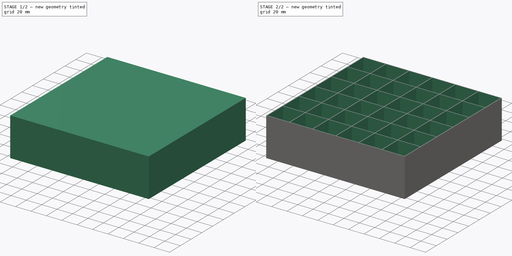
[diagram: build sequence overview — one tinted view per stage of 2, left to right]
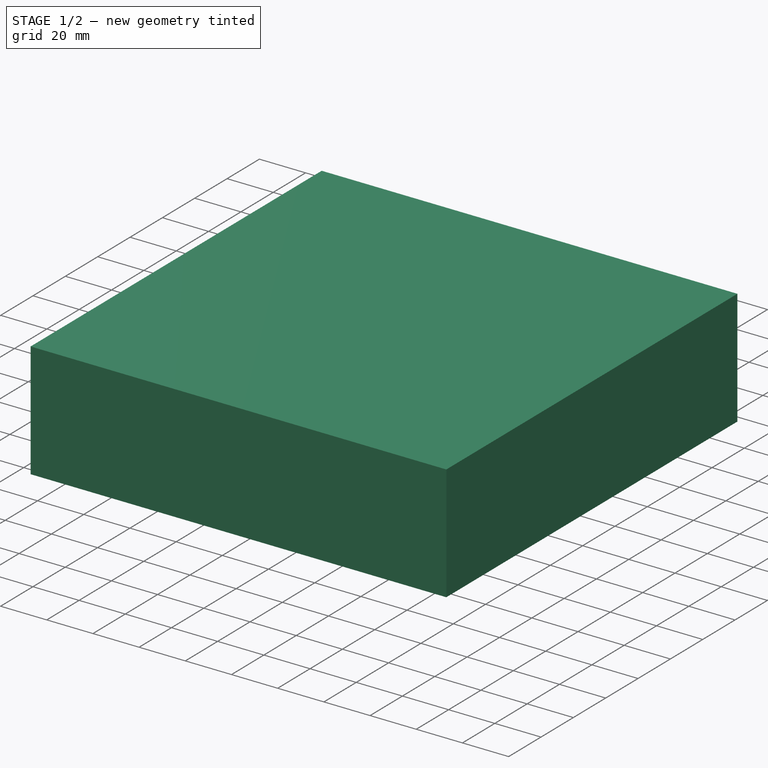
[diagram: stage 1 of 2 — iso view after this stage's code; geometry added in this stage tinted green]
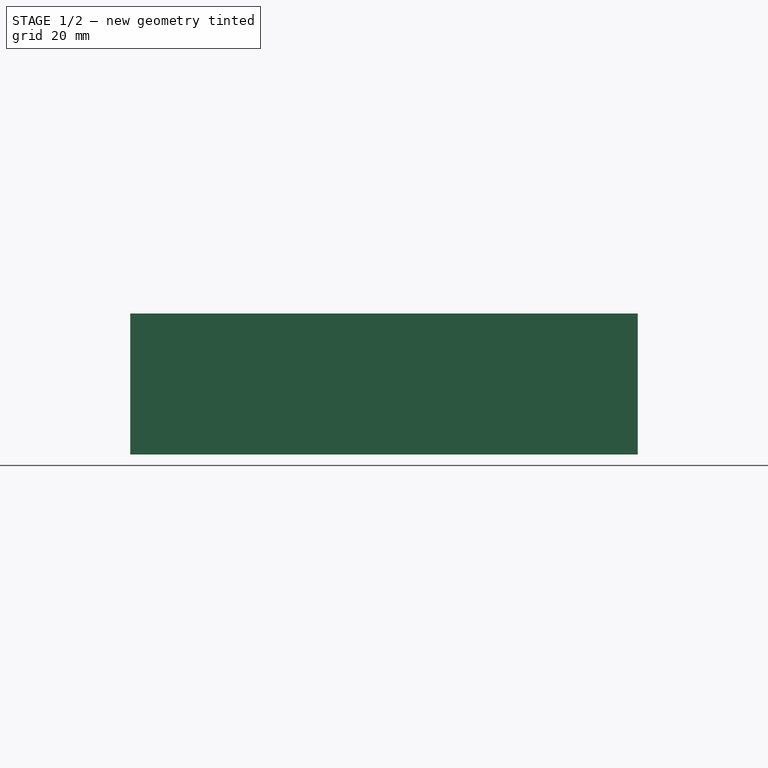
[diagram: stage 1 of 2 — front view after this stage's code; geometry added in this stage tinted green]
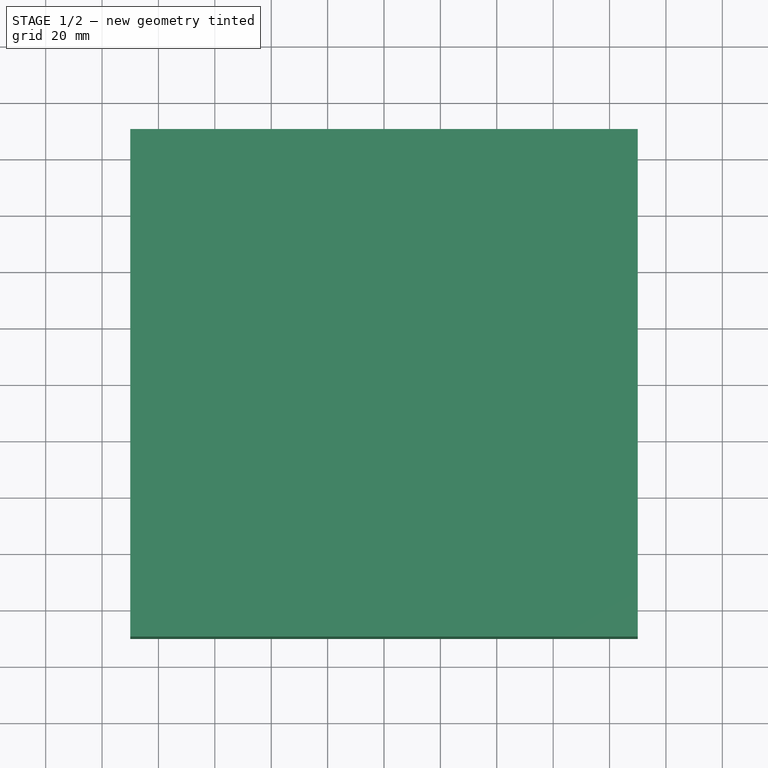
[diagram: stage 1 of 2 — top view after this stage's code; geometry added in this stage tinted green]
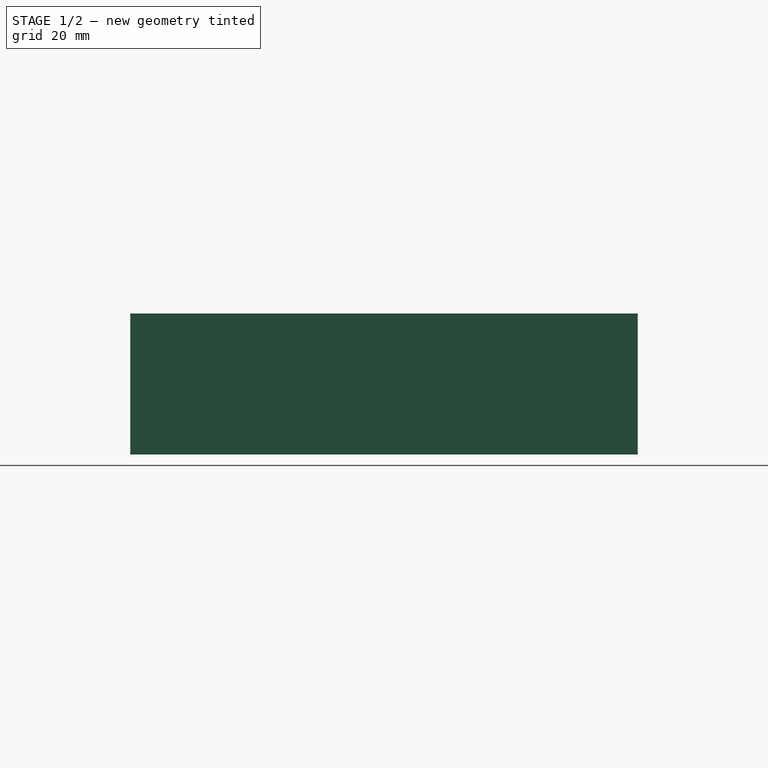
[diagram: stage 1 of 2 — right view after this stage's code; geometry added in this stage tinted green]
FCSTD DOCUMENT  (FreeCAD 1.0R39285 (Git))
Label: GridBox
License: All rights reserved
LicenseURL: https://en.wikipedia.org/wiki/All_rights_reserved
objects: Sketcher::SketchObject×2, PartDesign::Pad×1, PartDesign::Pocket×1, PartDesign::Body×1, App::Part×1
note: 11 computed .brp shape members not serialized (recipe doc carries the construction recipe); baked Part::Feature solids carry a one-line shape summary decoded from their .brp

FEATURE [Sketcher::SketchObject] Sketch
  ArcFitTolerance = 1e-06
  AttachmentSupport = -> [XY_Plane001]
  FullyConstrained = false
  MakeInternals = false
  MapMode = 5
  sketch-geometry (5):
    g0: LineSegment StartX=-90 StartY=90 StartZ=0 EndX=-90 EndY=-90 EndZ=0
    g1: LineSegment StartX=-90 StartY=-90 StartZ=0 EndX=90 EndY=-90 EndZ=0
    g2: LineSegment StartX=90 StartY=-90 StartZ=0 EndX=90 EndY=90 EndZ=0
    g3: LineSegment StartX=90 StartY=90 StartZ=0 EndX=-90 EndY=90 EndZ=0
    g4: GeomPoint [constr] X=0 Y=0 Z=0
  constraints (9):
    c: Coincident(g0,g1)
    c: Coincident(g1,g2)
    c: Coincident(g2,g3)
    c: Coincident(g3,g0)
    c: Vertical(g0)
    c: Vertical(g2)
    c: Horizontal(g1)
    c: Horizontal(g3)
    c: Symmetric(g2,g0,g4)
FEATURE [PartDesign::Pad] Pad
  Direction = (0,0,1)
  Length = 50
  Length2 = 10
  Profile = -> Sketch
  ReferenceAxis = -> Sketch [N_Axis]
  Refine = true
  Suppressed = false
  Type = 0
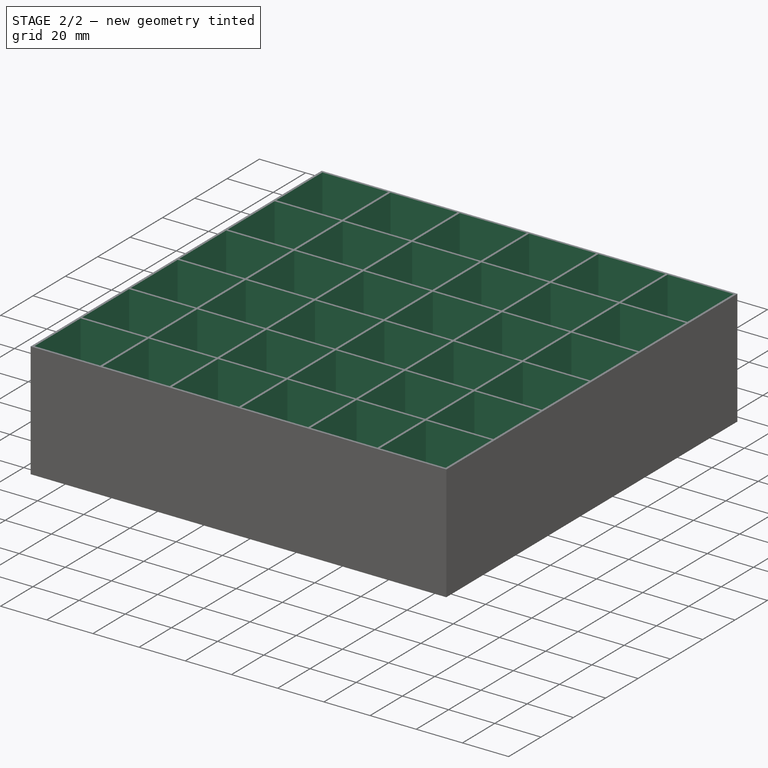
[diagram: stage 2 of 2 — iso view after this stage's code; geometry added in this stage tinted green]
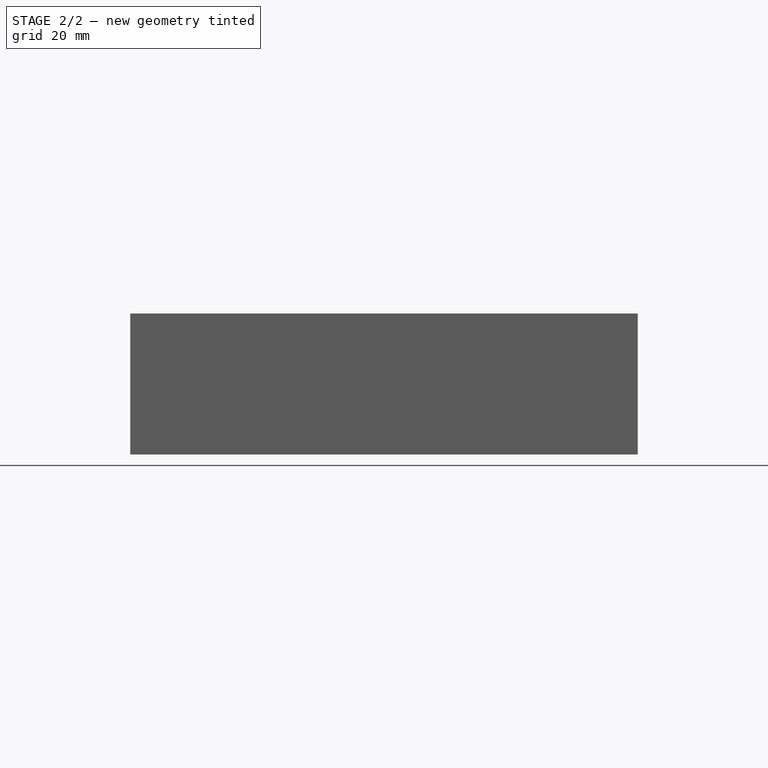
[diagram: stage 2 of 2 — front view after this stage's code; geometry added in this stage tinted green]
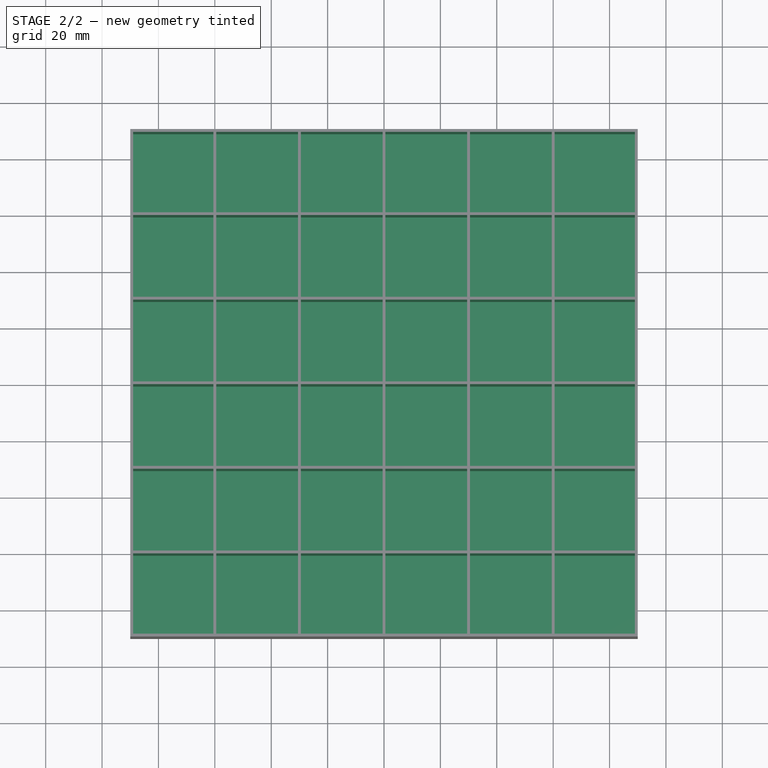
[diagram: stage 2 of 2 — top view after this stage's code; geometry added in this stage tinted green]
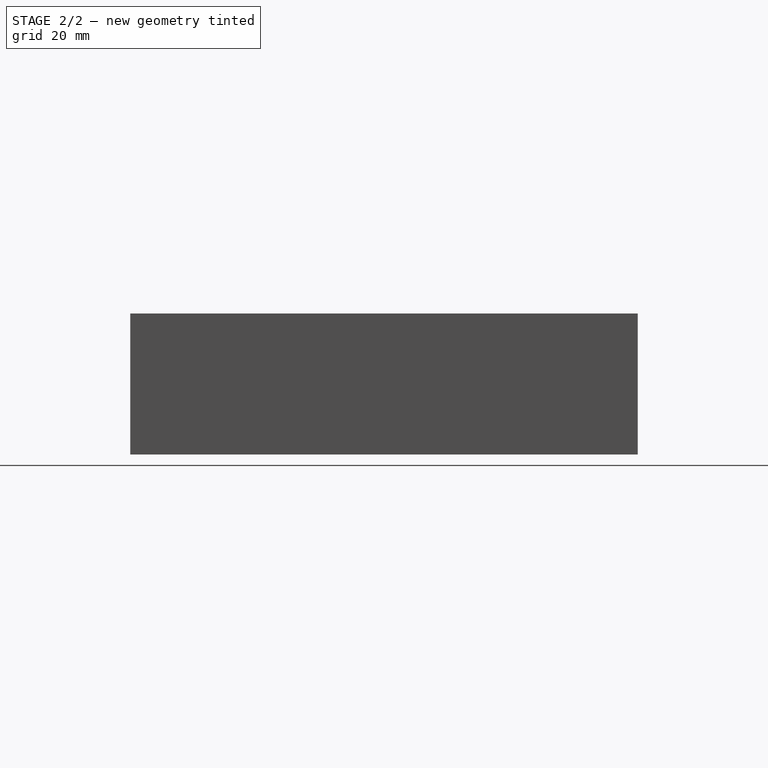
[diagram: stage 2 of 2 — right view after this stage's code; geometry added in this stage tinted green]
FEATURE [Sketcher::SketchObject] Sketch001
  ArcFitTolerance = 1e-06
  AttachmentSupport = -> [Pad]
  FullyConstrained = false
  MakeInternals = false
  MapMode = 5
  Placement = pos=(0,0,50) rot=(0,0,1;0rad)
  sketch-geometry (144):
    g0: LineSegment StartX=-89 StartY=89 StartZ=0 EndX=-89 EndY=60.5 EndZ=0
    g1: LineSegment StartX=-89 StartY=60.5 StartZ=0 EndX=-60.5 EndY=60.5 EndZ=0
    g2: LineSegment StartX=-60.5 StartY=60.5 StartZ=0 EndX=-60.5 EndY=89 EndZ=0
    g3: LineSegment StartX=-60.5 StartY=89 StartZ=0 EndX=-89 EndY=89 EndZ=0
    g4: LineSegment StartX=-89 StartY=59.5 StartZ=0 EndX=-89 EndY=30.5 EndZ=0
    g5: LineSegment StartX=-89 StartY=30.5 StartZ=0 EndX=-60.5 EndY=30.5 EndZ=0
    g6: LineSegment StartX=-60.5 StartY=30.5 StartZ=0 EndX=-60.5 EndY=59.5 EndZ=0
    g7: LineSegment StartX=-60.5 StartY=59.5 StartZ=0 EndX=-89 EndY=59.5 EndZ=0
    g8: LineSegment StartX=-89 StartY=29.5 StartZ=0 EndX=-89 EndY=0.5 EndZ=0
    g9: LineSegment StartX=-89 StartY=0.5 StartZ=0 EndX=-60.5 EndY=0.5 EndZ=0
    g10: LineSegment StartX=-60.5 StartY=0.5 StartZ=0 EndX=-60.5 EndY=29.5 EndZ=0
    g11: LineSegment StartX=-60.5 StartY=29.5 StartZ=0 EndX=-89 EndY=29.5 EndZ=0
    g12: LineSegment StartX=-59.5 StartY=89 StartZ=0 EndX=-59.5 EndY=60.5 EndZ=0
    g13: LineSegment StartX=-59.5 StartY=60.5 StartZ=0 EndX=-30.5 EndY=60.5 EndZ=0
    g14: LineSegment StartX=-30.5 StartY=60.5 StartZ=0 EndX=-30.5 EndY=89 EndZ=0
    g15: LineSegment StartX=-30.5 StartY=89 StartZ=0 EndX=-59.5 EndY=89 EndZ=0
    g16: LineSegment StartX=-30.523 StartY=59.5 StartZ=0 EndX=-59.5 EndY=59.5 EndZ=0
    g17: LineSegment StartX=-59.5 StartY=59.5 StartZ=0 EndX=-59.5 EndY=30.5 EndZ=0
    g18: LineSegment StartX=-59.5 StartY=30.5 StartZ=0 EndX=-30.523 EndY=30.5 EndZ=0
    g19: LineSegment StartX=-30.523 StartY=30.5 StartZ=0 EndX=-30.523 EndY=59.5 EndZ=0
    g20: LineSegment StartX=-59.5 StartY=29.5 StartZ=0 EndX=-59.5 EndY=0.5 EndZ=0
    g21: LineSegment StartX=-59.5 StartY=0.5 StartZ=0 EndX=-30.5 EndY=0.5 EndZ=0
    g22: LineSegment StartX=-30.5 StartY=0.5 StartZ=0 EndX=-30.5 EndY=29.5 EndZ=0
    g23: LineSegment StartX=-30.5 StartY=29.5 StartZ=0 EndX=-59.5 EndY=29.5 EndZ=0
    g24: LineSegment StartX=-29.5 StartY=89 StartZ=0 EndX=-29.5 EndY=60.5 EndZ=0
    g25: LineSegment StartX=-29.5 StartY=60.5 StartZ=0 EndX=-0.5 EndY=60.5 EndZ=0
    g26: LineSegment StartX=-0.5 StartY=60.5 StartZ=0 EndX=-0.5 EndY=89 EndZ=0
    g27: LineSegment StartX=-0.5 StartY=89 StartZ=0 EndX=-29.5 EndY=89 EndZ=0
    g28: LineSegment StartX=-0.5 StartY=59.5 StartZ=0 EndX=-29.5 EndY=59.5 EndZ=0
    g29: LineSegment StartX=-29.5 StartY=59.5 StartZ=0 EndX=-29.5 EndY=30.5 EndZ=0
    g30: LineSegment StartX=-29.5 StartY=30.5 StartZ=0 EndX=-0.5 EndY=30.5 EndZ=0
    g31: LineSegment StartX=-0.5 StartY=30.5 StartZ=0 EndX=-0.5 EndY=59.5 EndZ=0
    g32: LineSegment StartX=-29.5 StartY=29.5 StartZ=0 EndX=-29.5 EndY=0.5 EndZ=0
    g33: LineSegment StartX=-29.5 StartY=0.5 StartZ=0 EndX=-0.5 EndY=0.5 EndZ=0
    g34: LineSegment StartX=-0.5 StartY=0.5 StartZ=0 EndX=-0.5 EndY=29.5 EndZ=0
    g35: LineSegment StartX=-0.5 StartY=29.5 StartZ=0 EndX=-29.5 EndY=29.5 EndZ=0
    g36: LineSegment StartX=0.5 StartY=89 StartZ=0 EndX=0.5 EndY=60.5 EndZ=0
    g37: LineSegment StartX=0.5 StartY=60.5 StartZ=0 EndX=29.5 EndY=60.5 EndZ=0
    g38: LineSegment StartX=29.5 StartY=60.5 StartZ=0 EndX=29.5 EndY=89 EndZ=0
    g39: LineSegment StartX=29.5 StartY=89 StartZ=0 EndX=0.5 EndY=89 EndZ=0
    g40: LineSegment StartX=29.5 StartY=59.5 StartZ=0 EndX=0.5 EndY=59.5 EndZ=0
    g41: LineSegment StartX=0.5 StartY=59.5 StartZ=0 EndX=0.5 EndY=30.5 EndZ=0
    g42: LineSegment StartX=0.5 StartY=30.5 StartZ=0 EndX=29.5 EndY=30.5 EndZ=0
    g43: LineSegment StartX=29.5 StartY=30.5 StartZ=0 EndX=29.5 EndY=59.5 EndZ=0
    g44: LineSegment StartX=0.524419 StartY=29.5 StartZ=0 EndX=0.524419 EndY=0.5 EndZ=0
    g45: LineSegment StartX=0.524419 StartY=0.5 StartZ=0 EndX=29.5 EndY=0.5 EndZ=0
    g46: LineSegment StartX=29.5 StartY=0.5 StartZ=0 EndX=29.5 EndY=29.5 EndZ=0
    g47: LineSegment StartX=29.5 StartY=29.5 StartZ=0 EndX=0.524419 EndY=29.5 EndZ=0
    g48: LineSegment StartX=29.5 StartY=-0.5 StartZ=0 EndX=0.5 EndY=-0.5 EndZ=0
    g49: LineSegment StartX=0.5 StartY=-0.5 StartZ=0 EndX=0.5 EndY=-29.5 EndZ=0
    g50: LineSegment StartX=0.5 StartY=-29.5 StartZ=0 EndX=29.5 EndY=-29.5 EndZ=0
    g51: LineSegment StartX=29.5 StartY=-29.5 StartZ=0 EndX=29.5 EndY=-0.5 EndZ=0
    g52: LineSegment StartX=0.5 StartY=-30.5 StartZ=0 EndX=0.5 EndY=-59.5 EndZ=0
    g53: LineSegment StartX=0.5 StartY=-59.5 StartZ=0 EndX=29.5 EndY=-59.5 EndZ=0
    g54: LineSegment StartX=29.5 StartY=-59.5 StartZ=0 EndX=29.5 EndY=-30.5 EndZ=0
    g55: LineSegment StartX=29.5 StartY=-30.5 StartZ=0 EndX=0.5 EndY=-30.5 EndZ=0
    g56: LineSegment StartX=29.5 StartY=-60.5 StartZ=0 EndX=0.5 EndY=-60.5 EndZ=0
    g57: LineSegment StartX=0.5 StartY=-60.5 StartZ=0 EndX=0.5 EndY=-89 EndZ=0
    g58: LineSegment StartX=0.5 StartY=-89 StartZ=0 EndX=29.5 EndY=-89 EndZ=0
    g59: LineSegment StartX=29.5 StartY=-89 StartZ=0 EndX=29.5 EndY=-60.5 EndZ=0
    g60: LineSegment StartX=-89 StartY=-0.5 StartZ=0 EndX=-89 EndY=-29.5 EndZ=0
    g61: LineSegment StartX=-89 StartY=-29.5 StartZ=0 EndX=-60.5 EndY=-29.5 EndZ=0
    g62: LineSegment StartX=-60.5 StartY=-29.5 StartZ=0 EndX=-60.5 EndY=-0.5 EndZ=0
    g63: LineSegment StartX=-60.5 StartY=-0.5 StartZ=0 EndX=-89 EndY=-0.5 EndZ=0
    g64: LineSegment StartX=-59.5 StartY=-29.5 StartZ=0 EndX=-30.5 EndY=-29.5 EndZ=0
    g65: LineSegment StartX=-30.5 StartY=-29.5 StartZ=0 EndX=-30.5 EndY=-0.5 EndZ=0
    g66: LineSegment StartX=-30.5 StartY=-0.5 StartZ=0 EndX=-59.5 EndY=-0.5 EndZ=0
    g67: LineSegment StartX=-59.5 StartY=-0.5 StartZ=0 EndX=-59.5 EndY=-29.5 EndZ=0
    g68: LineSegment StartX=-29.5 StartY=-0.5 StartZ=0 EndX=-29.5 EndY=-29.5 EndZ=0
    g69: LineSegment StartX=-29.5 StartY=-29.5 StartZ=0 EndX=-0.5 EndY=-29.5 EndZ=0
    g70: LineSegment StartX=-0.5 StartY=-29.5 StartZ=0 EndX=-0.5 EndY=-0.5 EndZ=0
    g71: LineSegment StartX=-0.5 StartY=-0.5 StartZ=0 EndX=-29.5 EndY=-0.5 EndZ=0
    g72: LineSegment StartX=-29.5 StartY=-30.5 StartZ=0 EndX=-29.5 EndY=-59.5 EndZ=0
    g73: LineSegment StartX=-29.5 StartY=-59.5 StartZ=0 EndX=-0.5 EndY=-59.5 EndZ=0
    g74: LineSegment StartX=-0.5 StartY=-59.5 StartZ=0 EndX=-0.5 EndY=-30.5 EndZ=0
    g75: LineSegment StartX=-0.5 StartY=-30.5 StartZ=0 EndX=-29.5 EndY=-30.5 EndZ=0
    g76: LineSegment StartX=-0.5 StartY=-60.5 StartZ=0 EndX=-29.5 EndY=-60.5 EndZ=0
    g77: LineSegment StartX=-29.5 StartY=-60.5 StartZ=0 EndX=-29.5 EndY=-89 EndZ=0
    g78: LineSegment StartX=-29.5 StartY=-89 StartZ=0 EndX=-0.5 EndY=-89 EndZ=0
    g79: LineSegment StartX=-0.5 StartY=-89 StartZ=0 EndX=-0.5 EndY=-60.5 EndZ=0
    g80: LineSegment StartX=-89 StartY=-30.5 StartZ=0 EndX=-89 EndY=-59.5 EndZ=0
    g81: LineSegment StartX=-89 StartY=-59.5 StartZ=0 EndX=-60.5 EndY=-59.5 EndZ=0
    g82: LineSegment StartX=-60.5 StartY=-59.5 StartZ=0 EndX=-60.5 EndY=-30.5 EndZ=0
    g83: LineSegment StartX=-60.5 StartY=-30.5 StartZ=0 EndX=-89 EndY=-30.5 EndZ=0
    g84: LineSegment StartX=-59.5 StartY=-30.5 StartZ=0 EndX=-59.5 EndY=-59.5 EndZ=0
    g85: LineSegment StartX=-59.5 StartY=-59.5 StartZ=0 EndX=-30.5 EndY=-59.5 EndZ=0
    g86: LineSegment StartX=-30.5 StartY=-59.5 StartZ=0 EndX=-30.5 EndY=-30.5 EndZ=0
    g87: LineSegment StartX=-30.5 StartY=-30.5 StartZ=0 EndX=-59.5 EndY=-30.5 EndZ=0
    g88: LineSegment StartX=-30.5 StartY=-60.5 StartZ=0 EndX=-59.5 EndY=-60.5 EndZ=0
    g89: LineSegment StartX=-59.5 StartY=-60.5 StartZ=0 EndX=-59.5 EndY=-89 EndZ=0
    g90: LineSegment StartX=-59.5 StartY=-89 StartZ=0 EndX=-30.5 EndY=-89 EndZ=0
    g91: LineSegment StartX=-30.5 StartY=-89 StartZ=0 EndX=-30.5 EndY=-60.5 EndZ=0
    g92: LineSegment StartX=-60.5 StartY=-89 StartZ=0 EndX=-60.5 EndY=-60.5 EndZ=0
    g93: LineSegment StartX=-60.5 StartY=-60.5 StartZ=0 EndX=-89 EndY=-60.5 EndZ=0
    g94: LineSegment StartX=-89 StartY=-60.5 StartZ=0 EndX=-89 EndY=-89 EndZ=0
    g95: LineSegment StartX=-89 StartY=-89 StartZ=0 EndX=-60.5 EndY=-89 EndZ=0
    g96: LineSegment StartX=30.5 StartY=89 StartZ=0 EndX=30.5 EndY=60.5 EndZ=0
    g97: LineSegment StartX=30.5 StartY=60.5 StartZ=0 EndX=59.5 EndY=60.5 EndZ=0
    g98: LineSegment StartX=59.5 StartY=60.5 StartZ=0 EndX=59.5 EndY=89 EndZ=0
    g99: LineSegment StartX=59.5 StartY=89 StartZ=0 EndX=30.5 EndY=89 EndZ=0
    g100: LineSegment StartX=59.5 StartY=59.5 StartZ=0 EndX=30.5 EndY=59.5 EndZ=0
    g101: LineSegment StartX=30.5 StartY=59.5 StartZ=0 EndX=30.5 EndY=30.5 EndZ=0
    g102: LineSegment StartX=30.5 StartY=30.5 StartZ=0 EndX=59.5 EndY=30.5 EndZ=0
    g103: LineSegment StartX=59.5 StartY=30.5 StartZ=0 EndX=59.5 EndY=59.5 EndZ=0
    g104: LineSegment StartX=30.5 StartY=29.5 StartZ=0 EndX=30.5 EndY=0.5 EndZ=0
    g105: LineSegment StartX=30.5 StartY=0.5 StartZ=0 EndX=59.5 EndY=0.5 EndZ=0
    g106: LineSegment StartX=59.5 StartY=0.5 StartZ=0 EndX=59.5 EndY=29.5 EndZ=0
    g107: LineSegment StartX=59.5 StartY=29.5 StartZ=0 EndX=30.5 EndY=29.5 EndZ=0
    g108: LineSegment StartX=59.5 StartY=-0.5 StartZ=0 EndX=30.5 EndY=-0.5 EndZ=0
    g109: LineSegment StartX=30.5 StartY=-0.5 StartZ=0 EndX=30.5 EndY=-29.5 EndZ=0
    g110: LineSegment StartX=30.5 StartY=-29.5 StartZ=0 EndX=59.5 EndY=-29.5 EndZ=0
    g111: LineSegment StartX=59.5 StartY=-29.5 StartZ=0 EndX=59.5 EndY=-0.5 EndZ=0
    g112: LineSegment StartX=30.5 StartY=-30.5 StartZ=0 EndX=30.5 EndY=-59.5 EndZ=0
    g113: LineSegment StartX=30.5 StartY=-59.5 StartZ=0 EndX=59.5 EndY=-59.5 EndZ=0
    g114: LineSegment StartX=59.5 StartY=-59.5 StartZ=0 EndX=59.5 EndY=-30.5 EndZ=0
    g115: LineSegment StartX=59.5 StartY=-30.5 StartZ=0 EndX=30.5 EndY=-30.5 EndZ=0
    g116: LineSegment StartX=59.5 StartY=-60.5 StartZ=0 EndX=30.5 EndY=-60.5 EndZ=0
    g117: LineSegment StartX=30.5 StartY=-60.5 StartZ=0 EndX=30.5 EndY=-89 EndZ=0
    g118: LineSegment StartX=30.5 StartY=-89 StartZ=0 EndX=59.5 EndY=-89 EndZ=0
    g119: LineSegment StartX=59.5 StartY=-89 StartZ=0 EndX=59.5 EndY=-60.5 EndZ=0
    g120: LineSegment StartX=60.5 StartY=89 StartZ=0 EndX=60.5 EndY=60.5 EndZ=0
    g121: LineSegment StartX=60.5 StartY=60.5 StartZ=0 EndX=89 EndY=60.5 EndZ=0
    g122: LineSegment StartX=89 StartY=60.5 StartZ=0 EndX=89 EndY=89 EndZ=0
    g123: LineSegment StartX=89 StartY=89 StartZ=0 EndX=60.5 EndY=89 EndZ=0
    g124: LineSegment StartX=89 StartY=59.5 StartZ=0 EndX=60.5 EndY=59.5 EndZ=0
    g125: LineSegment StartX=60.5 StartY=59.5 StartZ=0 EndX=60.5 EndY=30.5 EndZ=0
    g126: LineSegment StartX=60.5 StartY=30.5 StartZ=0 EndX=89 EndY=30.5 EndZ=0
    g127: LineSegment StartX=89 StartY=30.5 StartZ=0 EndX=89 EndY=59.5 EndZ=0
    g128: LineSegment StartX=60.5 StartY=29.5 StartZ=0 EndX=60.5 EndY=0.5 EndZ=0
    g129: LineSegment StartX=60.5 StartY=0.5 StartZ=0 EndX=89 EndY=0.5 EndZ=0
    g130: LineSegment StartX=89 StartY=0.5 StartZ=0 EndX=89 EndY=29.5 EndZ=0
    g131: LineSegment StartX=89 StartY=29.5 StartZ=0 EndX=60.5 EndY=29.5 EndZ=0
    g132: LineSegment StartX=89 StartY=-0.5 StartZ=0 EndX=60.5 EndY=-0.5 EndZ=0
    g133: LineSegment StartX=60.5 StartY=-0.5 StartZ=0 EndX=60.5 EndY=-29.5 EndZ=0
    g134: LineSegment StartX=60.5 StartY=-29.5 StartZ=0 EndX=89 EndY=-29.5 EndZ=0
    g135: LineSegment StartX=89 StartY=-29.5 StartZ=0 EndX=89 EndY=-0.5 EndZ=0
    g136: LineSegment StartX=60.5 StartY=-30.5 StartZ=0 EndX=60.5 EndY=-59.5 EndZ=0
    g137: LineSegment StartX=60.5 StartY=-59.5 StartZ=0 EndX=89 EndY=-59.5 EndZ=0
    g138: LineSegment StartX=89 StartY=-59.5 StartZ=0 EndX=89 EndY=-30.5 EndZ=0
    g139: LineSegment StartX=89 StartY=-30.5 StartZ=0 EndX=60.5 EndY=-30.5 EndZ=0
    g140: LineSegment StartX=89 StartY=-60.5 StartZ=0 EndX=60.5 EndY=-60.5 EndZ=0
    g141: LineSegment StartX=60.5 StartY=-60.5 StartZ=0 EndX=60.5 EndY=-89 EndZ=0
    g142: LineSegment StartX=60.5 StartY=-89 StartZ=0 EndX=89 EndY=-89 EndZ=0
    g143: LineSegment StartX=89 StartY=-89 StartZ=0 EndX=89 EndY=-60.5 EndZ=0
  constraints (288):
    c: Coincident(g0,g1)
    c: Coincident(g1,g2)
    c: Coincident(g2,g3)
    c: Coincident(g3,g0)
    c: Vertical(g0)
    c: Vertical(g2)
    c: Horizontal(g1)
    c: Horizontal(g3)
    c: Coincident(g4,g5)
    c: Coincident(g5,g6)
    c: Coincident(g6,g7)
    c: Coincident(g7,g4)
    c: Vertical(g4)
    c: Vertical(g6)
    c: Horizontal(g5)
    c: Horizontal(g7)
    c: Coincident(g8,g9)
    c: Coincident(g9,g10)
    c: Coincident(g10,g11)
    c: Coincident(g11,g8)
    c: Vertical(g8)
    c: Vertical(g10)
    c: Horizontal(g9)
    c: Horizontal(g11)
    c: Coincident(g12,g13)
    c: Coincident(g13,g14)
    c: Coincident(g14,g15)
    c: Coincident(g15,g12)
    c: Vertical(g12)
    c: Vertical(g14)
    c: Horizontal(g13)
    c: Horizontal(g15)
    c: Coincident(g16,g17)
    c: Coincident(g17,g18)
    c: Coincident(g18,g19)
    c: Coincident(g19,g16)
    c: Horizontal(g16)
    c: Horizontal(g18)
    c: Vertical(g17)
    c: Vertical(g19)
    c: Coincident(g20,g21)
    c: Coincident(g21,g22)
    c: Coincident(g22,g23)
    c: Coincident(g23,g20)
    c: Vertical(g20)
    c: Vertical(g22)
    c: Horizontal(g21)
    c: Horizontal(g23)
    c: Coincident(g24,g25)
    c: Coincident(g25,g26)
    c: Coincident(g26,g27)
    c: Coincident(g27,g24)
    c: Vertical(g24)
    c: Vertical(g26)
    c: Horizontal(g25)
    c: Horizontal(g27)
    c: Coincident(g28,g29)
    c: Coincident(g29,g30)
    c: Coincident(g30,g31)
    c: Coincident(g31,g28)
    c: Horizontal(g28)
    c: Horizontal(g30)
    c: Vertical(g29)
    c: Vertical(g31)
    c: Coincident(g32,g33)
    c: Coincident(g33,g34)
    c: Coincident(g34,g35)
    c: Coincident(g35,g32)
    c: Vertical(g32)
    c: Vertical(g34)
    c: Horizontal(g33)
    c: Horizontal(g35)
    c: Coincident(g36,g37)
    c: Coincident(g37,g38)
    c: Coincident(g38,g39)
    c: Coincident(g39,g36)
    c: Vertical(g36)
    c: Vertical(g38)
    c: Horizontal(g37)
    c: Horizontal(g39)
    c: Coincident(g40,g41)
    c: Coincident(g41,g42)
    c: Coincident(g42,g43)
    c: Coincident(g43,g40)
    c: Horizontal(g40)
    c: Horizontal(g42)
    c: Vertical(g41)
    c: Vertical(g43)
    c: Coincident(g44,g45)
    c: Coincident(g45,g46)
    c: Coincident(g46,g47)
    c: Coincident(g47,g44)
    c: Vertical(g44)
    c: Vertical(g46)
    c: Horizontal(g45)
    c: Horizontal(g47)
    c: Coincident(g48,g49)
    c: Coincident(g49,g50)
    c: Coincident(g50,g51)
    c: Coincident(g51,g48)
    c: Horizontal(g48)
    c: Horizontal(g50)
    c: Vertical(g49)
    c: Vertical(g51)
    c: Coincident(g52,g53)
    c: Coincident(g53,g54)
    c: Coincident(g54,g55)
    c: Coincident(g55,g52)
    c: Vertical(g52)
    c: Vertical(g54)
    c: Horizontal(g53)
    c: Horizontal(g55)
    c: Coincident(g56,g57)
    c: Coincident(g57,g58)
    c: Coincident(g58,g59)
    c: Coincident(g59,g56)
    c: Horizontal(g56)
    c: Horizontal(g58)
    c: Vertical(g57)
    c: Vertical(g59)
    c: Coincident(g60,g61)
    c: Coincident(g61,g62)
    c: Coincident(g62,g63)
    c: Coincident(g63,g60)
    c: Vertical(g60)
    c: Vertical(g62)
    c: Horizontal(g61)
    c: Horizontal(g63)
    c: Coincident(g64,g65)
    c: Coincident(g65,g66)
    c: Coincident(g66,g67)
    c: Coincident(g67,g64)
    c: Horizontal(g64)
    c: Horizontal(g66)
    c: Vertical(g65)
    c: Vertical(g67)
    c: Coincident(g68,g69)
    c: Coincident(g69,g70)
    c: Coincident(g70,g71)
    c: Coincident(g71,g68)
    c: Vertical(g68)
    c: Vertical(g70)
    c: Horizontal(g69)
    c: Horizontal(g71)
    c: Coincident(g72,g73)
    c: Coincident(g73,g74)
    c: Coincident(g74,g75)
    c: Coincident(g75,g72)
    c: Vertical(g72)
    c: Vertical(g74)
    c: Horizontal(g73)
    c: Horizontal(g75)
    c: Coincident(g76,g77)
    c: Coincident(g77,g78)
    c: Coincident(g78,g79)
    c: Coincident(g79,g76)
    c: Horizontal(g76)
    c: Horizontal(g78)
    c: Vertical(g77)
    c: Vertical(g79)
    c: Coincident(g80,g81)
    c: Coincident(g81,g82)
    c: Coincident(g82,g83)
    c: Coincident(g83,g80)
    c: Vertical(g80)
    c: Vertical(g82)
    c: Horizontal(g81)
    c: Horizontal(g83)
    c: Coincident(g84,g85)
    c: Coincident(g85,g86)
    c: Coincident(g86,g87)
    c: Coincident(g87,g84)
    c: Vertical(g84)
    c: Vertical(g86)
    c: Horizontal(g85)
    c: Horizontal(g87)
    c: Coincident(g88,g89)
    c: Coincident(g89,g90)
    c: Coincident(g90,g91)
    c: Coincident(g91,g88)
    c: Horizontal(g88)
    c: Horizontal(g90)
    c: Vertical(g89)
    c: Vertical(g91)
    c: Coincident(g92,g93)
    c: Coincident(g93,g94)
    c: Coincident(g94,g95)
    c: Coincident(g95,g92)
    c: Vertical(g92)
    c: Vertical(g94)
    c: Horizontal(g93)
    c: Horizontal(g95)
    c: Coincident(g96,g97)
    c: Coincident(g97,g98)
    c: Coincident(g98,g99)
    c: Coincident(g99,g96)
    c: Vertical(g96)
    c: Vertical(g98)
    c: Horizontal(g97)
    c: Horizontal(g99)
    c: Coincident(g100,g101)
    c: Coincident(g101,g102)
    c: Coincident(g102,g103)
    c: Coincident(g103,g100)
    c: Horizontal(g100)
    c: Horizontal(g102)
    c: Vertical(g101)
    c: Vertical(g103)
    c: Coincident(g104,g105)
    c: Coincident(g105,g106)
    c: Coincident(g106,g107)
    c: Coincident(g107,g104)
    c: Vertical(g104)
    c: Vertical(g106)
    c: Horizontal(g105)
    c: Horizontal(g107)
    c: Coincident(g108,g109)
    c: Coincident(g109,g110)
    c: Coincident(g110,g111)
    c: Coincident(g111,g108)
    c: Horizontal(g108)
    c: Horizontal(g110)
    c: Vertical(g109)
    c: Vertical(g111)
    c: Coincident(g112,g113)
    c: Coincident(g113,g114)
    c: Coincident(g114,g115)
    c: Coincident(g115,g112)
    c: Vertical(g112)
    c: Vertical(g114)
    c: Horizontal(g113)
    c: Horizontal(g115)
    c: Coincident(g116,g117)
    c: Coincident(g117,g118)
    c: Coincident(g118,g119)
    c: Coincident(g119,g116)
    c: Horizontal(g116)
    c: Horizontal(g118)
    c: Vertical(g117)
    c: Vertical(g119)
    c: Coincident(g120,g121)
    c: Coincident(g121,g122)
    c: Coincident(g122,g123)
    c: Coincident(g123,g120)
    c: Vertical(g120)
    c: Vertical(g122)
    c: Horizontal(g121)
    c: Horizontal(g123)
    c: Coincident(g124,g125)
    c: Coincident(g125,g126)
    c: Coincident(g126,g127)
    c: Coincident(g127,g124)
    c: Horizontal(g124)
    c: Horizontal(g126)
    c: Vertical(g125)
    c: Vertical(g127)
    c: Coincident(g128,g129)
    c: Coincident(g129,g130)
    c: Coincident(g130,g131)
    c: Coincident(g131,g128)
    c: Vertical(g128)
    c: Vertical(g130)
    c: Horizontal(g129)
    c: Horizontal(g131)
    c: Coincident(g132,g133)
    c: Coincident(g133,g134)
    c: Coincident(g134,g135)
    c: Coincident(g135,g132)
    c: Horizontal(g132)
    c: Horizontal(g134)
    c: Vertical(g133)
    c: Vertical(g135)
    c: Coincident(g136,g137)
    c: Coincident(g137,g138)
    c: Coincident(g138,g139)
    c: Coincident(g139,g136)
    c: Vertical(g136)
    c: Vertical(g138)
    c: Horizontal(g137)
    c: Horizontal(g139)
    c: Coincident(g140,g141)
    c: Coincident(g141,g142)
    c: Coincident(g142,g143)
    c: Coincident(g143,g140)
    c: Horizontal(g140)
    c: Horizontal(g142)
    c: Vertical(g141)
    c: Vertical(g143)
FEATURE [PartDesign::Pocket] Pocket
  BaseFeature = -> Pad
  Direction = (0,0,-1)
  Length = 49
  Length2 = 5
  Profile = -> Sketch001
  ReferenceAxis = -> Sketch001 [N_Axis]
  Refine = true
  Suppressed = false
  Type = 0
FEATURE [PartDesign::Body] Body
  AllowCompound = false
  Group = -> [Sketch,Pad,Sketch001,Pocket]
  Origin = -> Origin001
  Tip = -> Pocket
FEATURE [App::Part] Part
  Group = -> [Body]
  Origin = -> Origin
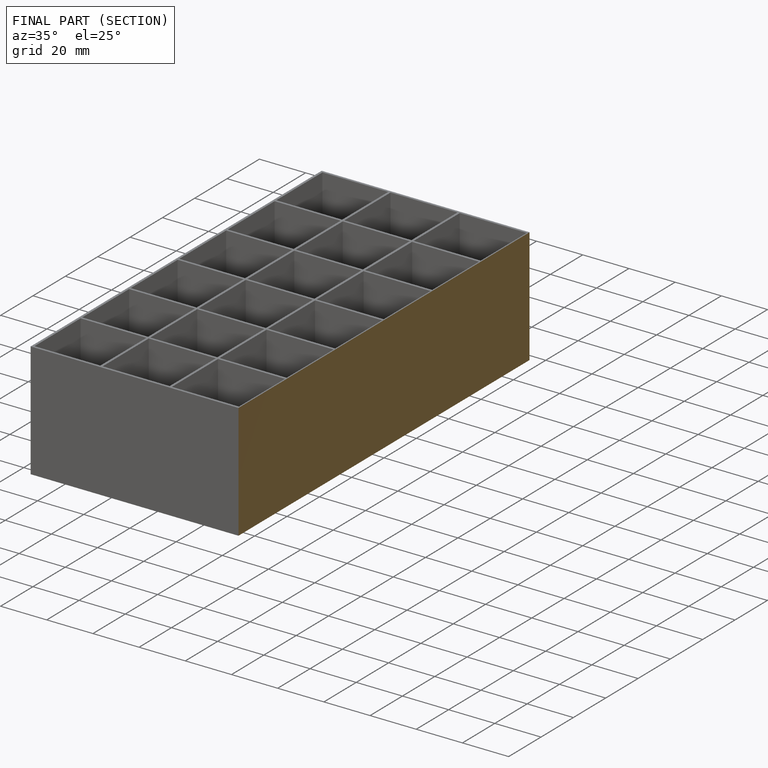
[diagram: finished part — half-section view (interior)]
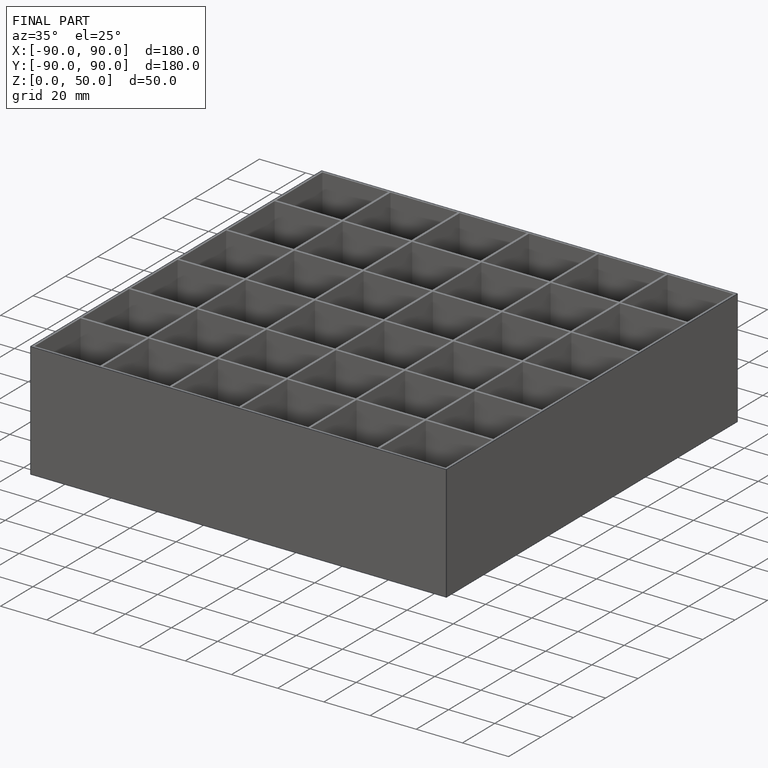
[diagram: finished part — iso view with bounding-box wireframe]
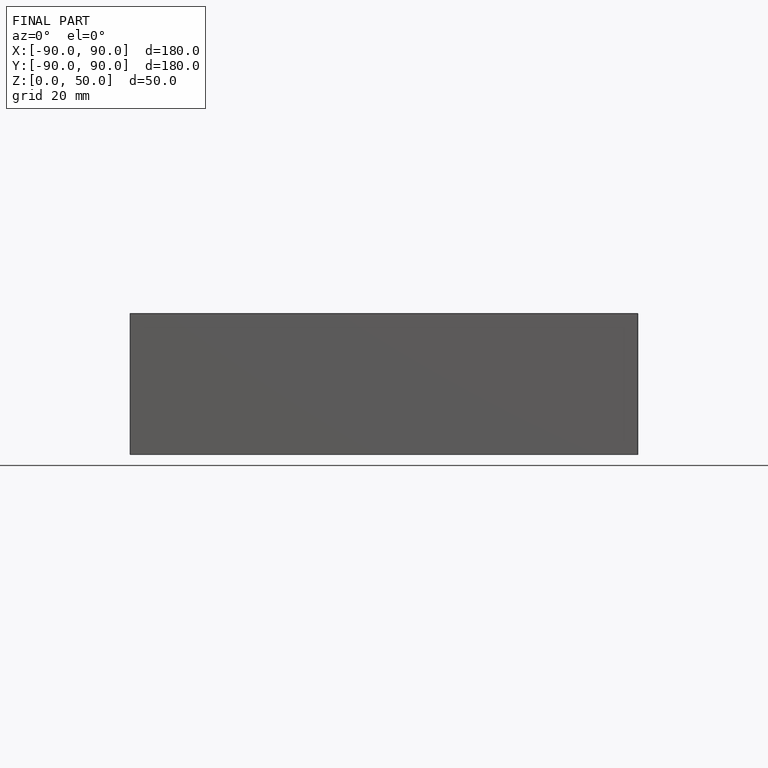
[diagram: finished part — front view with bounding-box wireframe]
